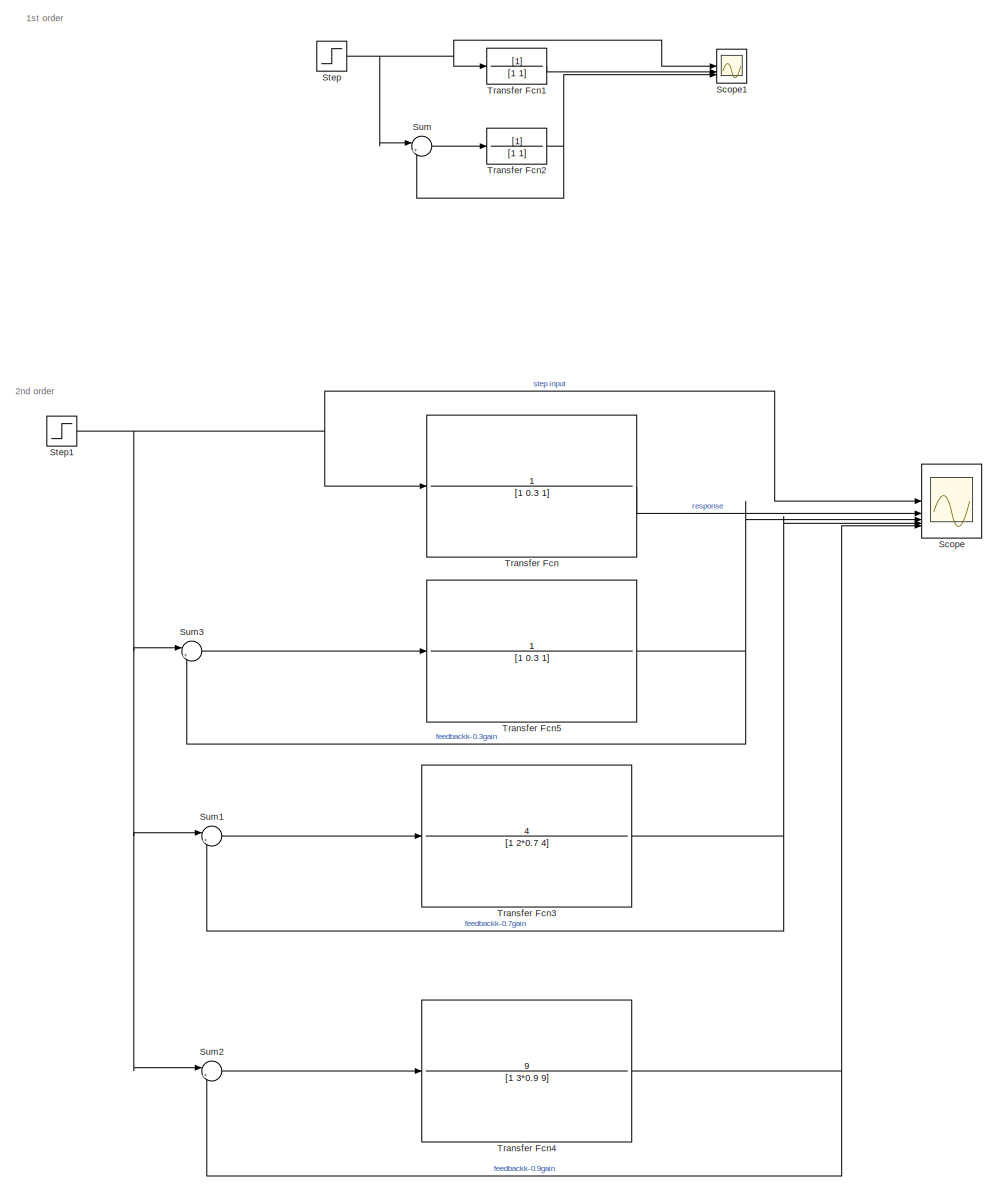
[diagram: root canvas - part 1/2, left side, full height]
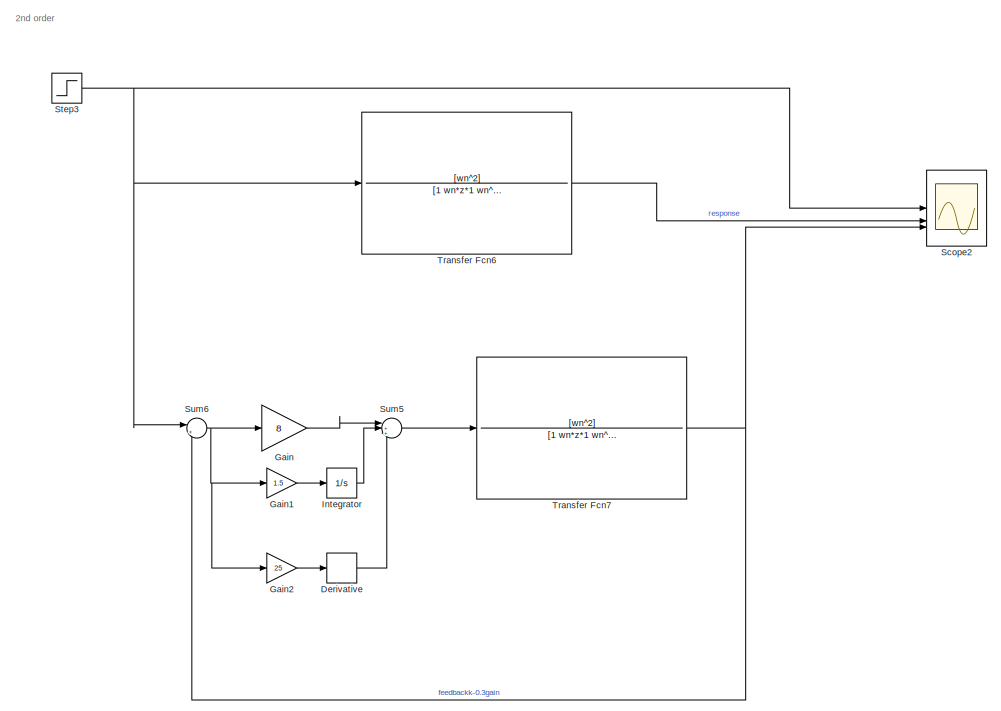
[diagram: root canvas - part 2/2, middle right region]
MODEL slx_9d108a2ee093
KIND model
CONFIG AbsTol = auto
CONFIG EnableMultiTasking = on
CONFIG FixedStep = 1e-3
CONFIG MaxStep = auto
CONFIG MinStep = auto
CONFIG RelTol = auto
CONFIG SampleTimeConstraint = Unconstrained
CONFIG SolverName = FixedStepAuto
CONFIG StartTime = 0.0
CONFIG StopTime = 50
BLOCK [Derivative] Derivative
  NameLocation = top
BLOCK [Gain] Gain
  Gain = 8
BLOCK [Gain] Gain1
  Gain = 1.5
BLOCK [Gain] Gain2
  Gain = 25
BLOCK [Integrator] Integrator
BLOCK [Scope] Scope
  Commented = on
  Floating = off
  NumInputPorts = 5
  ScopeSpecificationString = Simulink.scopes.TimeScopeBlockCfg('CurrentConfiguration', extmgr.ConfigurationSet(extmgr.Configuration('Core','General UI',true),extmgr.Configuration('Core','Source UI',true),extmgr.Configuration('Sources','WiredSimulink',true),extmgr.Configuration('Visuals','Time Domain',true,'SerializedDisplays',{struct('MinYLimReal','-0.20034','MaxYLimReal','1.8031','YLabelReal','','MinYLimMag','0.00000','MaxYL...<+1586ch>
BLOCK [Scope] Scope1
  Commented = on
  Floating = off
  NumInputPorts = 3
  ScopeSpecificationString = Simulink.scopes.TimeScopeBlockCfg('CurrentConfiguration', extmgr.ConfigurationSet(extmgr.Configuration('Core','General UI',true),extmgr.Configuration('Core','Source UI',true),extmgr.Configuration('Sources','WiredSimulink',true,'DataLoggingVariableName','ScopeData1'),extmgr.Configuration('Visuals','Time Domain',true,'SerializedDisplays',{struct('MinYLimReal','-0.125','MaxYLimReal','1.125','YLabelRe...<+3890ch>
BLOCK [Scope] Scope2
  Floating = off
  NumInputPorts = 3
  ScopeSpecificationString = Simulink.scopes.TimeScopeBlockCfg('CurrentConfiguration', extmgr.ConfigurationSet(extmgr.Configuration('Core','General UI',true),extmgr.Configuration('Core','Source UI',true),extmgr.Configuration('Sources','WiredSimulink',true,'DataLoggingVariableName','ScopeData2'),extmgr.Configuration('Visuals','Time Domain',true,'SerializedDisplays',{struct('MinYLimReal','-0.20202','MaxYLimReal','1.81822','YLab...<+1848ch>
BLOCK [Step] Step
  Commented = on
  SampleTime = 0
BLOCK [Step] Step1
  Commented = on
  SampleTime = 0
BLOCK [Step] Step3
  SampleTime = 0
BLOCK [Sum] Sum
  Commented = on
  Inputs = |+-
BLOCK [Sum] Sum1
  Commented = on
  Inputs = |+-
BLOCK [Sum] Sum2
  Commented = on
  Inputs = |+-
BLOCK [Sum] Sum3
  Commented = on
  Inputs = |+-
BLOCK [Sum] Sum5
  Inputs = |+++
BLOCK [Sum] Sum6
  Inputs = |+-
BLOCK [TransferFcn] Transfer Fcn
  Commented = on
  Denominator = [1 0.3 1]
  Numerator = 1
BLOCK [TransferFcn] Transfer Fcn1
  Commented = on
  Denominator = [1 1]
BLOCK [TransferFcn] Transfer Fcn2
  Commented = on
  Denominator = [1 1]
BLOCK [TransferFcn] Transfer Fcn3
  Commented = on
  Denominator = [1 2*0.7 4]
  Numerator = 4
BLOCK [TransferFcn] Transfer Fcn4
  Commented = on
  Denominator = [1 3*0.9 9]
  Numerator = 9
BLOCK [TransferFcn] Transfer Fcn5
  Commented = on
  Denominator = [1 0.3 1]
  Numerator = 1
BLOCK [TransferFcn] Transfer Fcn6
  Denominator = [1 wn*z*1 wn^2]
  Numerator = [wn^2]
BLOCK [TransferFcn] Transfer Fcn7
  Denominator = [1 wn*z*1 wn^2]
  Numerator = [wn^2]
ANNOTATION (root): 1st order
ANNOTATION (root): 2nd order
LINE Derivative:1 -> Sum5:3
LINE Gain1:1 -> Integrator:1
LINE Gain2:1 -> Derivative:1
LINE Gain:1 -> Sum5:1
LINE Integrator:1 -> Sum5:2
NET Step1:1 -> Scope:1, Sum1:1, Sum2:1, Sum3:1, Transfer Fcn:1
NET Step3:1 -> Scope2:1, Sum6:1, Transfer Fcn6:1
NET Step:1 -> Scope1:1, Sum:1, Transfer Fcn1:1
LINE Sum1:1 -> Transfer Fcn3:1
LINE Sum2:1 -> Transfer Fcn4:1
LINE Sum3:1 -> Transfer Fcn5:1
LINE Sum5:1 -> Transfer Fcn7:1
NET Sum6:1 -> Gain1:1, Gain2:1, Gain:1
LINE Sum:1 -> Transfer Fcn2:1
LINE Transfer Fcn1:1 -> Scope1:2
NET Transfer Fcn2:1 -> Scope1:3, Sum:2
NET Transfer Fcn3:1 -> Scope:4, Sum1:2
NET Transfer Fcn4:1 -> Scope:5, Sum2:2
NET Transfer Fcn5:1 -> Scope:3, Sum3:2
LINE Transfer Fcn6:1 -> Scope2:2
NET Transfer Fcn7:1 -> Scope2:3, Sum6:2
LINE Transfer Fcn:1 -> Scope:2
note: NET lines group one-source signal fan-out (src -> all destinations, sorted); 1:1 wires keep LINE
